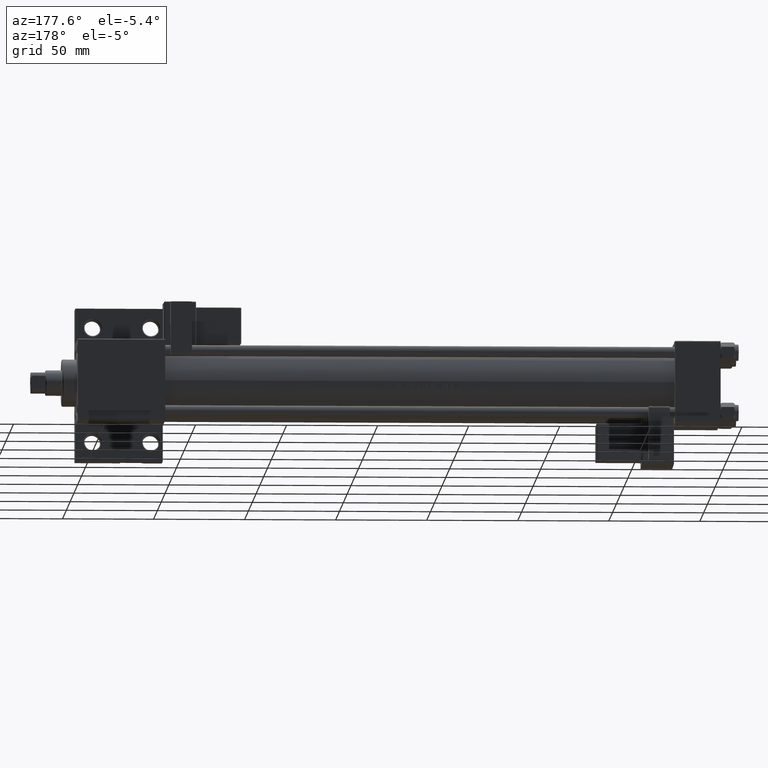
[diagram: clean part render]
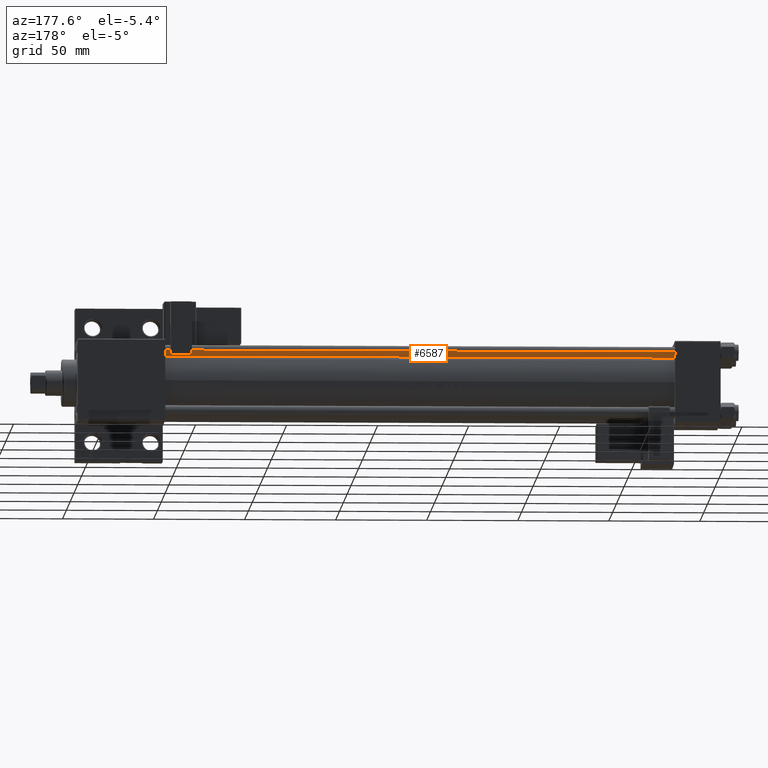
[diagram: same view with one face highlighted and labeled with its STEP entity id]
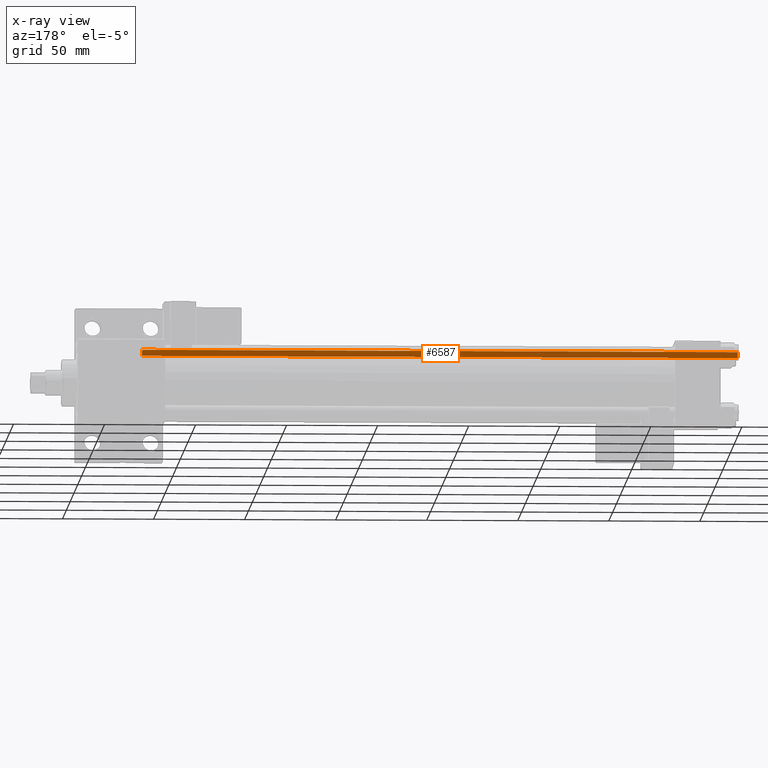
[diagram: x-ray of the same camera — body ghosted, the highlighted face saturated]
A machine part, auxiliary view. The second image highlights one B-rep face of the part: STEP entity #6587.
The next image is the same camera in x-ray: the body ghosted, the highlighted face saturated — about 0% of this face is hidden behind the body in this view.
In plain terms, the highlighted cylindrical surface (edge-blend (fillet) strip) has radius 3 mm, axis along (1, -0, 0).
Its self-contained STEP definition (entity closure, byte-faithful):
#4443 = DIRECTION ( 'NONE',  ( -0.000000000000000000, -0.000000000000000000, 1.000000000000000000 ) ) ;
#6587 = ADVANCED_FACE ( 'NONE', ( #33156 ), #10412, .T. ) ;
#7533 = ORIENTED_EDGE ( 'NONE', *, *, #42130, .T. ) ;
#10412 = CYLINDRICAL_SURFACE ( 'NONE', #23469, 3.000000000000000444 ) ;
#10413 = CARTESIAN_POINT ( 'NONE',  ( -3.000000000000000444, 0.000000000000000000, 0.5000000000000559552 ) ) ;
#10977 = VERTEX_POINT ( 'NONE', #10413 ) ;
#10993 = VERTEX_POINT ( 'NONE', #45295 ) ;
#11388 = LINE ( 'NONE', #11630, #13745 ) ;
#11630 = CARTESIAN_POINT ( 'NONE',  ( 3.000000000000000444, 3.673940397442060361E-16, 328.0000000000000000 ) ) ;
#13745 = VECTOR ( 'NONE', #22993, 1000.000000000000000 ) ;
#14752 = CARTESIAN_POINT ( 'NONE',  ( -3.000000000000000444, 0.000000000000000000, 328.0000000000000000 ) ) ;
#15244 = LINE ( 'NONE', #14752, #20514 ) ;
#15478 = EDGE_CURVE ( 'NONE', #40400, #10993, #38566, .T. ) ;
#16899 = CIRCLE ( 'NONE', #43547, 3.000000000000000444 ) ;
#17839 = DIRECTION ( 'NONE',  ( 0.000000000000000000, 0.000000000000000000, -1.000000000000000000 ) ) ;
#18794 = EDGE_LOOP ( 'NONE', ( #36410, #7533, #19059, #34911 ) ) ;
#19059 = ORIENTED_EDGE ( 'NONE', *, *, #39346, .T. ) ;
#20004 = AXIS2_PLACEMENT_3D ( 'NONE', #44645, #17839, #29449 ) ;
#20514 = VECTOR ( 'NONE', #30407, 1000.000000000000000 ) ;
#22993 = DIRECTION ( 'NONE',  ( -0.000000000000000000, -0.000000000000000000, -1.000000000000000000 ) ) ;
#23469 = AXIS2_PLACEMENT_3D ( 'NONE', #41486, #40059, #36959 ) ;
#25245 = EDGE_CURVE ( 'NONE', #40400, #10977, #15244, .T. ) ;
#26031 = CARTESIAN_POINT ( 'NONE',  ( -3.000000000000000444, 0.000000000000000000, 327.5000000000000000 ) ) ;
#29449 = DIRECTION ( 'NONE',  ( 1.000000000000000000, 0.000000000000000000, 0.000000000000000000 ) ) ;
#30407 = DIRECTION ( 'NONE',  ( -0.000000000000000000, -0.000000000000000000, -1.000000000000000000 ) ) ;
#31987 = VERTEX_POINT ( 'NONE', #48514 ) ;
#33156 = FACE_OUTER_BOUND ( 'NONE', #18794, .T. ) ;
#34911 = ORIENTED_EDGE ( 'NONE', *, *, #25245, .F. ) ;
#35266 = DIRECTION ( 'NONE',  ( 1.000000000000000000, 0.000000000000000000, 0.000000000000000000 ) ) ;
#36410 = ORIENTED_EDGE ( 'NONE', *, *, #15478, .T. ) ;
#36959 = DIRECTION ( 'NONE',  ( -1.000000000000000000, 0.000000000000000000, 0.000000000000000000 ) ) ;
#38566 = CIRCLE ( 'NONE', #20004, 3.000000000000000444 ) ;
#39056 = CARTESIAN_POINT ( 'NONE',  ( 0.000000000000000000, 0.000000000000000000, 0.5000000000000559552 ) ) ;
#39346 = EDGE_CURVE ( 'NONE', #31987, #10977, #16899, .T. ) ;
#40059 = DIRECTION ( 'NONE',  ( -0.000000000000000000, -0.000000000000000000, -1.000000000000000000 ) ) ;
#40400 = VERTEX_POINT ( 'NONE', #26031 ) ;
#41486 = CARTESIAN_POINT ( 'NONE',  ( 0.000000000000000000, 0.000000000000000000, 328.0000000000000000 ) ) ;
#42130 = EDGE_CURVE ( 'NONE', #10993, #31987, #11388, .T. ) ;
#43547 = AXIS2_PLACEMENT_3D ( 'NONE', #39056, #4443, #35266 ) ;
#44645 = CARTESIAN_POINT ( 'NONE',  ( 0.000000000000000000, 0.000000000000000000, 327.5000000000000000 ) ) ;
#45295 = CARTESIAN_POINT ( 'NONE',  ( 3.000000000000000444, 3.673940397442060361E-16, 327.5000000000000000 ) ) ;
#48514 = CARTESIAN_POINT ( 'NONE',  ( 3.000000000000000444, 3.673940397442060361E-16, 0.5000000000000559552 ) ) ;